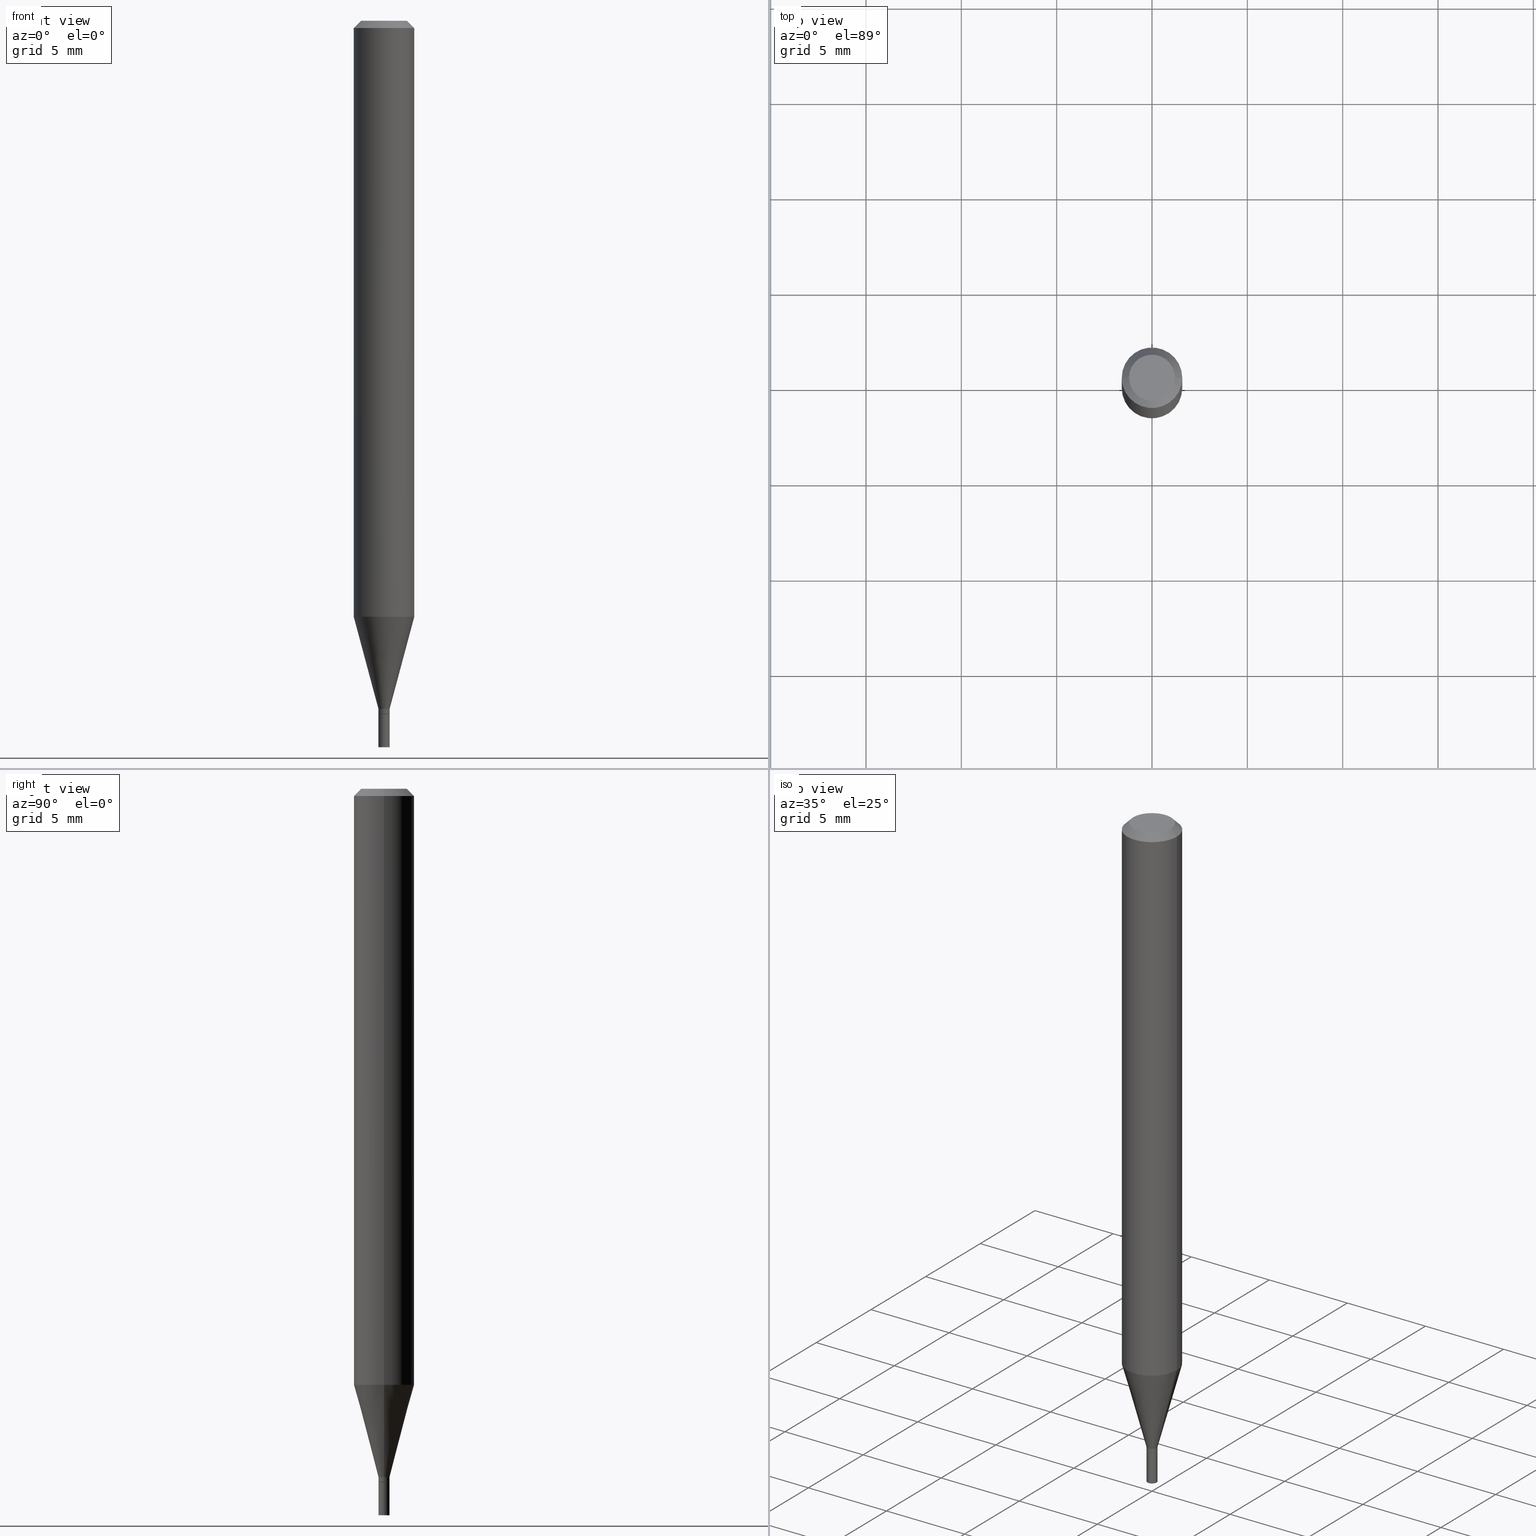
[diagram: canonical four-view strip — front | top / right | iso, engineering-drawing reading convention]
A machine part, canonical four-view strip (front | top / right | iso — engineering-drawing reading convention). The complete STEP part file that produces these views, byte-faithful:
ISO-10303-21;
HEADER;
FILE_DESCRIPTION (( 'STEP AP203' ),
    '1' );
FILE_NAME ('02330.STEP',
    '2024-03-18T20:08:19',
    ( '' ),
    ( '' ),
    'SwSTEP 2.0',
    'SolidWorks 2023',
    '' );
FILE_SCHEMA (( 'CONFIG_CONTROL_DESIGN' ));
ENDSEC;

DATA;
#1 = CALENDAR_DATE ( 2024, 18, 3 ) ;
#2 = CARTESIAN_POINT ( 'NONE',  ( 0.01100000000000000110, -5.073122385339090530E-15, -1.431000000000000050 ) ) ;
#3 = VECTOR ( 'NONE', #340, 39.37007874015748143 ) ;
#4 = DIRECTION ( 'NONE',  ( -2.445468806185136597E-29, 3.491481338843145583E-15, 1.000000000000000000 ) ) ;
#5 = APPROVAL_ROLE ( '' ) ;
#6 = DIRECTION ( 'NONE',  ( -2.445468806185136597E-29, 3.491481338843145583E-15, 1.000000000000000000 ) ) ;
#7 = LINE ( 'NONE', #217, #105 ) ;
#8 = LINE ( 'NONE', #152, #192 ) ;
#9 = AXIS2_PLACEMENT_3D ( 'NONE', #168, #179, #438 ) ;
#10 = AXIS2_PLACEMENT_3D ( 'NONE', #42, #409, #82 ) ;
#11 = PERSON_AND_ORGANIZATION_ROLE ( 'classification_officer' ) ;
#12 = DIRECTION ( 'NONE',  ( 0.7071067811865405783, -7.319954787623230802E-15, -0.7071067811865542341 ) ) ;
#13 = EDGE_CURVE ( 'NONE', #339, #277, #288, .T. ) ;
#14 = DIRECTION ( 'NONE',  ( 1.000000000000000000, -6.982962677686266711E-15, 0.000000000000000000 ) ) ;
#15 = EDGE_LOOP ( 'NONE', ( #124, #87, #307, #242 ) ) ;
#16 = ORIENTED_EDGE ( 'NONE', *, *, #362, .F. ) ;
#17 = CARTESIAN_POINT ( 'NONE',  ( 0.01149999999999999981, -5.076613866677933538E-15, -1.431000000000000050 ) ) ;
#18 =( NAMED_UNIT ( * ) PLANE_ANGLE_UNIT ( ) SI_UNIT ( $, .RADIAN. ) );
#19 = UNCERTAINTY_MEASURE_WITH_UNIT (LENGTH_MEASURE( 1.000000000000000082E-05 ), #374, 'distance_accuracy_value', 'NONE');
#20 = CIRCLE ( 'NONE', #10, 0.01149999999999992348 ) ;
#21 = EDGE_CURVE ( 'NONE', #85, #358, #251, .T. ) ;
#22 = AXIS2_PLACEMENT_3D ( 'NONE', #114, #143, #289 ) ;
#23 = EDGE_LOOP ( 'NONE', ( #268, #458 ) ) ;
#24 = ORIENTED_EDGE ( 'NONE', *, *, #181, .T. ) ;
#25 = ORIENTED_EDGE ( 'NONE', *, *, #419, .F. ) ;
#26 = DIRECTION ( 'NONE',  ( -2.445468806185136597E-29, 3.491481338843145583E-15, 1.000000000000000000 ) ) ;
#27 = AXIS2_PLACEMENT_3D ( 'NONE', #40, #436, #314 ) ;
#28 = AXIS2_PLACEMENT_3D ( 'NONE', #332, #154, #86 ) ;
#29 = ADVANCED_FACE ( 'NONE', ( #364 ), #412, .T. ) ;
#30 = CARTESIAN_POINT ( 'NONE',  ( -7.156224791579416592E-45, 1.021719240628687565E-30, 2.926320210456058586E-16 ) ) ;
#31 = DIRECTION ( 'NONE',  ( -2.445468806185136877E-29, 3.491481338843145188E-15, 1.000000000000000000 ) ) ;
#32 = ORIENTED_EDGE ( 'NONE', *, *, #429, .T. ) ;
#33 = DIRECTION ( 'NONE',  ( -2.438088387897960049E-29, 3.491481338843145188E-15, 1.000000000000000000 ) ) ;
#34 = APPROVAL_STATUS ( 'not_yet_approved' ) ;
#35 = VERTEX_POINT ( 'NONE', #104 ) ;
#36 = DATE_AND_TIME ( #220, #50 ) ;
#37 = DIRECTION ( 'NONE',  ( 2.445468806185136597E-29, -3.491481338843145583E-15, -1.000000000000000000 ) ) ;
#38 = LINE ( 'NONE', #262, #420 ) ;
#39 = CC_DESIGN_PERSON_AND_ORGANIZATION_ASSIGNMENT ( #324, #209, ( #297 ) ) ;
#40 = CARTESIAN_POINT ( 'NONE',  ( 0.000000000000000000, 0.000000000000000000, 0.000000000000000000 ) ) ;
#41 = AXIS2_PLACEMENT_3D ( 'NONE', #248, #441, #395 ) ;
#42 = CARTESIAN_POINT ( 'NONE',  ( 3.498243127247838561E-29, -4.994564055215120503E-15, -1.430500000000000327 ) ) ;
#43 = CYLINDRICAL_SURFACE ( 'NONE', #27, 0.06250000000000000000 ) ;
#44 = EDGE_CURVE ( 'NONE', #169, #85, #225, .T. ) ;
#45 = COORDINATED_UNIVERSAL_TIME_OFFSET ( 5, 0, .BEHIND. ) ;
#46 = PRODUCT_DEFINITION_SHAPE ( 'NONE', 'NONE',  #274 ) ;
#47 = DIRECTION ( 'NONE',  ( -2.445468806185136597E-29, 3.491481338843145583E-15, 1.000000000000000000 ) ) ;
#48 = ADVANCED_FACE ( 'NONE', ( #100 ), #350, .T. ) ;
#49 = VECTOR ( 'NONE', #403, 39.37007874015748143 ) ;
#50 = LOCAL_TIME ( 16, 8, 19.00000000000000000, #256 ) ;
#51 = CYLINDRICAL_SURFACE ( 'NONE', #28, 0.01149999999999992174 ) ;
#52 = FACE_OUTER_BOUND ( 'NONE', #208, .T. ) ;
#53 = DIRECTION ( 'NONE',  ( -2.445468806185136597E-29, 3.491481338843145583E-15, 1.000000000000000000 ) ) ;
#54 = ADVANCED_FACE ( 'NONE', ( #134 ), #304, .T. ) ;
#55 = ORIENTED_EDGE ( 'NONE', *, *, #92, .T. ) ;
#56 = CARTESIAN_POINT ( 'NONE',  ( 3.475011173589079817E-29, -4.961394982496111147E-15, -1.421000000000000263 ) ) ;
#57 = AXIS2_PLACEMENT_3D ( 'NONE', #247, #431, #463 ) ;
#58 = CIRCLE ( 'NONE', #312, 0.06250000000000000000 ) ;
#59 = EDGE_CURVE ( 'NONE', #232, #93, #186, .T. ) ;
#60 = CIRCLE ( 'NONE', #203, 0.04749999999999999362 ) ;
#61 = ORIENTED_EDGE ( 'NONE', *, *, #405, .F. ) ;
#62 = ORIENTED_EDGE ( 'NONE', *, *, #139, .F. ) ;
#63 = FACE_OUTER_BOUND ( 'NONE', #244, .T. ) ;
#64 = ORIENTED_EDGE ( 'NONE', *, *, #148, .F. ) ;
#65 = DIRECTION ( 'NONE',  ( -2.445468806185136597E-29, 3.491481338843145583E-15, 1.000000000000000000 ) ) ;
#66 = VERTEX_POINT ( 'NONE', #135 ) ;
#67 = VECTOR ( 'NONE', #243, 39.37007874015748143 ) ;
#68 = VECTOR ( 'NONE', #271, 39.37007874015748143 ) ;
#69 = CARTESIAN_POINT ( 'NONE',  ( 0.04749999999999999362, -4.035134999187572707E-16, 2.926320210456084224E-16 ) ) ;
#70 = ORIENTED_EDGE ( 'NONE', *, *, #276, .F. ) ;
#71 = PERSON_AND_ORGANIZATION ( #145, #250 ) ;
#72 = DIRECTION ( 'NONE',  ( 2.445468806185136597E-29, -3.491481338843145583E-15, -1.000000000000000000 ) ) ;
#73 = DIRECTION ( 'NONE',  ( -2.445468806185136877E-29, 3.491481338843145188E-15, 1.000000000000000000 ) ) ;
#74 = CARTESIAN_POINT ( 'NONE',  ( 0.000000000000000000, 0.000000000000000000, 0.000000000000000000 ) ) ;
#75 = CYLINDRICAL_SURFACE ( 'NONE', #9, 0.06250000000000000000 ) ;
#76 = FACE_OUTER_BOUND ( 'NONE', #126, .T. ) ;
#77 = AXIS2_PLACEMENT_3D ( 'NONE', #459, #26, #398 ) ;
#78 = CONICAL_SURFACE ( 'NONE', #377, 0.06250000000000000000, 0.7853981633974386201 ) ;
#79 = DIRECTION ( 'NONE',  ( -2.445468806185136597E-29, 3.491481338843145583E-15, 1.000000000000000000 ) ) ;
#80 = PRODUCT ( '02330', '02330', '', ( #442 ) ) ;
#81 = ADVANCED_FACE ( 'NONE', ( #212 ), #75, .T. ) ;
#82 = DIRECTION ( 'NONE',  ( 1.000000000000000000, -6.982962677686252511E-15, 0.000000000000000000 ) ) ;
#83 = CIRCLE ( 'NONE', #149, 0.01149999999999999981 ) ;
#84 = CONICAL_SURFACE ( 'NONE', #427, 0.06250000000000000000, 0.7853981633974386201 ) ;
#85 = VERTEX_POINT ( 'NONE', #255 ) ;
#86 = DIRECTION ( 'NONE',  ( 1.000000000000000000, -6.982962677686266711E-15, 4.876176775795935232E-29 ) ) ;
#87 = ORIENTED_EDGE ( 'NONE', *, *, #188, .T. ) ;
#88 = ORIENTED_EDGE ( 'NONE', *, *, #276, .T. ) ;
#89 = FACE_OUTER_BOUND ( 'NONE', #280, .T. ) ;
#90 = CIRCLE ( 'NONE', #249, 0.01149999999999999981 ) ;
#91 = CC_DESIGN_APPROVAL ( #294, ( #297 ) ) ;
#92 = EDGE_CURVE ( 'NONE', #131, #169, #7, .T. ) ;
#93 = VERTEX_POINT ( 'NONE', #286 ) ;
#94 = AXIS2_PLACEMENT_3D ( 'NONE', #97, #227, #383 ) ;
#95 = ORIENTED_EDGE ( 'NONE', *, *, #362, .T. ) ;
#96 = CIRCLE ( 'NONE', #193, 0.06250000000000000000 ) ;
#97 = CARTESIAN_POINT ( 'NONE',  ( 8.030407079342705414E-17, 0.01149999999999500380, -1.431000000000000050 ) ) ;
#98 = ORIENTED_EDGE ( 'NONE', *, *, #139, .T. ) ;
#99 = ORIENTED_EDGE ( 'NONE', *, *, #206, .T. ) ;
#100 = FACE_OUTER_BOUND ( 'NONE', #125, .T. ) ;
#101 = CARTESIAN_POINT ( 'NONE',  ( 0.000000000000000000, 0.000000000000000000, 0.000000000000000000 ) ) ;
#102 = PRODUCT_RELATED_PRODUCT_CATEGORY ( 'detail', '', ( #80 ) ) ;
#103 = ORIENTED_EDGE ( 'NONE', *, *, #311, .F. ) ;
#104 = CARTESIAN_POINT ( 'NONE',  ( -0.01149999999999999981, -5.035053487462219287E-15, -1.431000000000000050 ) ) ;
#105 = VECTOR ( 'NONE', #318, 39.37007874015748143 ) ;
#106 = CARTESIAN_POINT ( 'NONE',  ( 3.499465861650930802E-29, -4.996309795884541218E-15, -1.431000000000000050 ) ) ;
#107 =( NAMED_UNIT ( * ) SI_UNIT ( $, .STERADIAN. ) SOLID_ANGLE_UNIT ( ) );
#108 = PERSON_AND_ORGANIZATION ( #145, #250 ) ;
#109 = FACE_OUTER_BOUND ( 'NONE', #379, .T. ) ;
#110 = DATE_TIME_ROLE ( 'classification_date' ) ;
#111 = DIRECTION ( 'NONE',  ( 0.7071067811865642261, -2.468850131082431399E-15, 0.7071067811865309194 ) ) ;
#112 = APPROVAL_ROLE ( '' ) ;
#113 = CIRCLE ( 'NONE', #342, 0.01149999999999999981 ) ;
#114 = CARTESIAN_POINT ( 'NONE',  ( 3.475011173589079817E-29, -4.961394982496111147E-15, -1.421000000000000263 ) ) ;
#115 =( GEOMETRIC_REPRESENTATION_CONTEXT ( 3 ) GLOBAL_UNCERTAINTY_ASSIGNED_CONTEXT ( ( #19 ) ) GLOBAL_UNIT_ASSIGNED_CONTEXT ( ( #374, #18, #107 ) ) REPRESENTATION_CONTEXT ( 'NONE', 'WORKASPACE' ) );
#116 = EDGE_CURVE ( 'NONE', #302, #133, #113, .T. ) ;
#117 = COORDINATED_UNIVERSAL_TIME_OFFSET ( 5, 0, .BEHIND. ) ;
#118 = CARTESIAN_POINT ( 'NONE',  ( 0.06250000000000000000, -4.888073874380388472E-16, -0.01499999999999999944 ) ) ;
#119 = DIRECTION ( 'NONE',  ( 1.000000000000000000, -6.982962677686254878E-15, 0.000000000000000000 ) ) ;
#120 = ORIENTED_EDGE ( 'NONE', *, *, #440, .F. ) ;
#121 = DIRECTION ( 'NONE',  ( 1.000000000000000000, -6.982962677686267499E-15, 4.876176775795935793E-29 ) ) ;
#122 = CIRCLE ( 'NONE', #260, 0.01149999999999992001 ) ;
#123 = ADVANCED_FACE ( 'NONE', ( #109 ), #43, .T. ) ;
#124 = ORIENTED_EDGE ( 'NONE', *, *, #181, .F. ) ;
#125 = EDGE_LOOP ( 'NONE', ( #32, #376, #355, #61 ) ) ;
#126 = EDGE_LOOP ( 'NONE', ( #375, #166 ) ) ;
#127 = PLANE ( 'NONE',  #426 ) ;
#128 = EDGE_CURVE ( 'NONE', #417, #131, #130, .T. ) ;
#129 = CIRCLE ( 'NONE', #141, 0.01100000000000000110 ) ;
#130 = CIRCLE ( 'NONE', #22, 0.01149999999999992001 ) ;
#131 = VERTEX_POINT ( 'NONE', #296 ) ;
#132 = CC_DESIGN_APPROVAL ( #393, ( #354 ) ) ;
#133 = VERTEX_POINT ( 'NONE', #253 ) ;
#134 = FACE_OUTER_BOUND ( 'NONE', #15, .T. ) ;
#135 = CARTESIAN_POINT ( 'NONE',  ( -0.01149999999999992348, -4.912851640602709304E-15, -1.430500000000000327 ) ) ;
#136 = CC_DESIGN_PERSON_AND_ORGANIZATION_ASSIGNMENT ( #406, #183, ( #80 ) ) ;
#137 = CARTESIAN_POINT ( 'NONE',  ( 3.499465861650930802E-29, -4.996309795884541218E-15, -1.431000000000000050 ) ) ;
#138 = DIRECTION ( 'NONE',  ( -2.445468806185136597E-29, 3.491481338843145583E-15, 1.000000000000000000 ) ) ;
#139 = EDGE_CURVE ( 'NONE', #433, #35, #90, .T. ) ;
#140 = CALENDAR_DATE ( 2024, 18, 3 ) ;
#141 = AXIS2_PLACEMENT_3D ( 'NONE', #283, #408, #211 ) ;
#142 = VECTOR ( 'NONE', #372, 39.37007874015748854 ) ;
#143 = DIRECTION ( 'NONE',  ( -2.445468806185136597E-29, 3.491481338843145583E-15, 1.000000000000000000 ) ) ;
#144 = CARTESIAN_POINT ( 'NONE',  ( -0.06250000000000000000, -1.730519554808165837E-15, -0.01499999999999999944 ) ) ;
#145 = PERSON ( 'UNSPECIFIED', 'UNSPECIFIED', 'UNSPECIFIED', ('UNSPECIFIED'), ('UNSPECIFIED'), ('UNSPECIFIED') ) ;
#146 = CALENDAR_DATE ( 2024, 18, 3 ) ;
#147 = CARTESIAN_POINT ( 'NONE',  ( 3.668203209277704895E-29, -5.237222008264718177E-15, -1.500000000000000222 ) ) ;
#148 = EDGE_CURVE ( 'NONE', #339, #228, #404, .T. ) ;
#149 = AXIS2_PLACEMENT_3D ( 'NONE', #461, #79, #401 ) ;
#150 = CARTESIAN_POINT ( 'NONE',  ( 3.668203209277705088E-31, -5.237222008264718399E-17, -0.01499999999999999944 ) ) ;
#151 = AXIS2_PLACEMENT_3D ( 'NONE', #224, #47, #14 ) ;
#152 = CARTESIAN_POINT ( 'NONE',  ( 0.01149999999999992174, -8.030407079339151842E-17, 5.607603292165287521E-31 ) ) ;
#153 = CARTESIAN_POINT ( 'NONE',  ( 3.668203209277704895E-29, -5.237222008264718177E-15, -1.500000000000000222 ) ) ;
#154 = DIRECTION ( 'NONE',  ( -2.445468806185136597E-29, 3.491481338843145583E-15, 1.000000000000000000 ) ) ;
#155 = EDGE_LOOP ( 'NONE', ( #98, #382 ) ) ;
#156 = LINE ( 'NONE', #199, #68 ) ;
#157 = ORIENTED_EDGE ( 'NONE', *, *, #206, .F. ) ;
#158 = EDGE_CURVE ( 'NONE', #35, #433, #83, .T. ) ;
#159 = CARTESIAN_POINT ( 'NONE',  ( -0.01100000000000000110, -4.915500867776819716E-15, -1.431000000000000050 ) ) ;
#160 = VECTOR ( 'NONE', #12, 39.37007874015748854 ) ;
#161 = CC_DESIGN_PERSON_AND_ORGANIZATION_ASSIGNMENT ( #71, #11, ( #354 ) ) ;
#162 = ORIENTED_EDGE ( 'NONE', *, *, #384, .T. ) ;
#163 = CARTESIAN_POINT ( 'NONE',  ( 3.499465861650930802E-29, -4.996309795884541218E-15, -1.431000000000000050 ) ) ;
#164 = ORIENTED_EDGE ( 'NONE', *, *, #341, .F. ) ;
#165 = AXIS2_PLACEMENT_3D ( 'NONE', #270, #216, #450 ) ;
#166 = ORIENTED_EDGE ( 'NONE', *, *, #381, .F. ) ;
#167 = CC_DESIGN_DATE_AND_TIME_ASSIGNMENT ( #214, #110, ( #354 ) ) ;
#168 = CARTESIAN_POINT ( 'NONE',  ( 0.000000000000000000, 0.000000000000000000, 0.000000000000000000 ) ) ;
#169 = VERTEX_POINT ( 'NONE', #446 ) ;
#170 = DIRECTION ( 'NONE',  ( -2.445468806185136877E-29, 3.491481338843145188E-15, 1.000000000000000000 ) ) ;
#171 = DIRECTION ( 'NONE',  ( 1.000000000000000000, -6.982962677686265922E-15, 4.876176775795935793E-29 ) ) ;
#172 = EDGE_CURVE ( 'NONE', #169, #200, #38, .T. ) ;
#173 = APPROVAL_STATUS ( 'not_yet_approved' ) ;
#174 = DIRECTION ( 'NONE',  ( -2.445468806185136597E-29, 3.491481338843145583E-15, 1.000000000000000000 ) ) ;
#175 = DIRECTION ( 'NONE',  ( 0.000000000000000000, 0.000000000000000000, 1.000000000000000000 ) ) ;
#176 = COORDINATED_UNIVERSAL_TIME_OFFSET ( 5, 0, .BEHIND. ) ;
#177 = VECTOR ( 'NONE', #31, 39.37007874015748143 ) ;
#178 = CC_DESIGN_APPROVAL ( #449, ( #274 ) ) ;
#179 = DIRECTION ( 'NONE',  ( -2.445468806185136597E-29, 3.491481338843145583E-15, 1.000000000000000000 ) ) ;
#180 = APPLICATION_CONTEXT ( 'configuration controlled 3d designs of mechanical parts and assemblies' ) ;
#181 = EDGE_CURVE ( 'NONE', #277, #66, #465, .T. ) ;
#182 = CARTESIAN_POINT ( 'NONE',  ( -0.01100000000000000110, -4.918150094950930917E-15, -1.431000000000000050 ) ) ;
#183 = PERSON_AND_ORGANIZATION_ROLE ( 'design_owner' ) ;
#184 = PERSON_AND_ORGANIZATION_ROLE ( 'creator' ) ;
#185 = APPROVAL_DATE_TIME ( #36, #294 ) ;
#186 = CIRCLE ( 'NONE', #240, 0.04749999999999999362 ) ;
#187 = CARTESIAN_POINT ( 'NONE',  ( 0.06250000000000000000, -4.811533449433679005E-16, -0.01499999999999999944 ) ) ;
#188 = EDGE_CURVE ( 'NONE', #277, #339, #129, .T. ) ;
#189 = EDGE_LOOP ( 'NONE', ( #303, #157, #397, #279 ) ) ;
#190 = DIRECTION ( 'NONE',  ( 1.000000000000000000, -6.982962677686291165E-15, 0.000000000000000000 ) ) ;
#191 = CYLINDRICAL_SURFACE ( 'NONE', #447, 0.01149999999999999981 ) ;
#192 = VECTOR ( 'NONE', #264, 39.37007874015748143 ) ;
#193 = AXIS2_PLACEMENT_3D ( 'NONE', #334, #368, #295 ) ;
#194 = ADVANCED_FACE ( 'NONE', ( #361 ), #323, .T. ) ;
#195 = EDGE_LOOP ( 'NONE', ( #373, #457, #414, #245 ) ) ;
#196 = CARTESIAN_POINT ( 'NONE',  ( -0.01149999999999992174, 8.171241461241096533E-17, -5.656775353793103064E-31 ) ) ;
#197 = CIRCLE ( 'NONE', #151, 0.06250000000000000000 ) ;
#198 = ORIENTED_EDGE ( 'NONE', *, *, #429, .F. ) ;
#199 = CARTESIAN_POINT ( 'NONE',  ( 0.01149999999999992001, -5.041699053289501888E-15, -1.421000000000000263 ) ) ;
#200 = VERTEX_POINT ( 'NONE', #144 ) ;
#201 = ORIENTED_EDGE ( 'NONE', *, *, #44, .T. ) ;
#202 = CARTESIAN_POINT ( 'NONE',  ( 3.009553868105685827E-29, -4.296845309233809826E-15, -1.230665408813987893 ) ) ;
#203 = AXIS2_PLACEMENT_3D ( 'NONE', #30, #432, #291 ) ;
#204 = LOCAL_TIME ( 16, 8, 19.00000000000000000, #45 ) ;
#205 = DIRECTION ( 'NONE',  ( 1.000000000000000000, -6.982962677686244622E-15, 0.000000000000000000 ) ) ;
#206 = EDGE_CURVE ( 'NONE', #93, #232, #60, .T. ) ;
#207 = PLANE ( 'NONE',  #328 ) ;
#208 = EDGE_LOOP ( 'NONE', ( #315, #24, #198, #64 ) ) ;
#209 = PERSON_AND_ORGANIZATION_ROLE ( 'design_supplier' ) ;
#210 = MANIFOLD_SOLID_BREP ( 'Body-Move/Copy2[2]', #392 ) ;
#211 = DIRECTION ( 'NONE',  ( 1.000000000000000000, -6.982962677686244622E-15, 0.000000000000000000 ) ) ;
#212 = FACE_OUTER_BOUND ( 'NONE', #313, .T. ) ;
#213 = EDGE_CURVE ( 'NONE', #66, #228, #272, .T. ) ;
#214 = DATE_AND_TIME ( #1, #421 ) ;
#215 = CONICAL_SURFACE ( 'NONE', #413, 0.01100000000000000110, 0.7853981633974718157 ) ;
#216 = DIRECTION ( 'NONE',  ( 2.438088387897960049E-29, -3.491481338843145188E-15, -1.000000000000000000 ) ) ;
#217 = CARTESIAN_POINT ( 'NONE',  ( -0.01149999999999992001, -4.879682567883699947E-15, -1.421000000000000263 ) ) ;
#218 = APPLICATION_PROTOCOL_DEFINITION ( 'international standard', 'config_control_design', 1994, #180 ) ;
#219 = MANIFOLD_SOLID_BREP ( 'Body-Move/Copy2[1]', #258 ) ;
#220 = CALENDAR_DATE ( 2024, 18, 3 ) ;
#221 = CARTESIAN_POINT ( 'NONE',  ( 3.475011173589079817E-29, -4.961394982496111147E-15, -1.421000000000000263 ) ) ;
#222 = PERSON_AND_ORGANIZATION ( #145, #250 ) ;
#223 = APPLICATION_CONTEXT ( 'configuration controlled 3d designs of mechanical parts and assemblies' ) ;
#224 = CARTESIAN_POINT ( 'NONE',  ( 3.668203209277705088E-31, -5.237222008264718399E-17, -0.01499999999999999944 ) ) ;
#225 = CIRCLE ( 'NONE', #259, 0.06250000000000000000 ) ;
#226 = LINE ( 'NONE', #187, #160 ) ;
#227 = DIRECTION ( 'NONE',  ( 2.438088387897960049E-29, -3.491481338843145188E-15, -1.000000000000000000 ) ) ;
#228 = VERTEX_POINT ( 'NONE', #257 ) ;
#229 = CARTESIAN_POINT ( 'NONE',  ( 3.499465861650930802E-29, -4.996309795884541218E-15, -1.431000000000000050 ) ) ;
#230 = FACE_OUTER_BOUND ( 'NONE', #344, .T. ) ;
#231 = CARTESIAN_POINT ( 'NONE',  ( 0.01149999999999999981, -5.317526079058111285E-15, -1.500000000000000222 ) ) ;
#232 = VERTEX_POINT ( 'NONE', #69 ) ;
#233 = CARTESIAN_POINT ( 'NONE',  ( 0.000000000000000000, 0.000000000000000000, 0.000000000000000000 ) ) ;
#234 = DESIGN_CONTEXT ( 'detailed design', #223, 'design' ) ;
#235 = LOCAL_TIME ( 16, 8, 19.00000000000000000, #176 ) ;
#236 = ORIENTED_EDGE ( 'NONE', *, *, #172, .T. ) ;
#237 = ADVANCED_FACE ( 'NONE', ( #76 ), #207, .F. ) ;
#238 = DIRECTION ( 'NONE',  ( -2.445468806185136597E-29, 3.491481338843145583E-15, 1.000000000000000000 ) ) ;
#239 = FACE_OUTER_BOUND ( 'NONE', #155, .T. ) ;
#240 = AXIS2_PLACEMENT_3D ( 'NONE', #281, #366, #363 ) ;
#241 = CC_DESIGN_SECURITY_CLASSIFICATION ( #354, ( #297 ) ) ;
#242 = ORIENTED_EDGE ( 'NONE', *, *, #213, .F. ) ;
#243 = DIRECTION ( 'NONE',  ( -2.445468806185136877E-29, 3.491481338843145188E-15, 1.000000000000000000 ) ) ;
#244 = EDGE_LOOP ( 'NONE', ( #103, #454, #284, #16 ) ) ;
#245 = ORIENTED_EDGE ( 'NONE', *, *, #371, .F. ) ;
#246 = ADVANCED_FACE ( 'NONE', ( #239 ), #422, .F. ) ;
#247 = CARTESIAN_POINT ( 'NONE',  ( 3.499465861650930802E-29, -4.996309795884541218E-15, -1.431000000000000050 ) ) ;
#248 = CARTESIAN_POINT ( 'NONE',  ( 3.498243127247838561E-29, -4.994564055215120503E-15, -1.430500000000000327 ) ) ;
#249 = AXIS2_PLACEMENT_3D ( 'NONE', #106, #174, #326 ) ;
#250 = ORGANIZATION ( 'UNSPECIFIED', 'UNSPECIFIED', '' ) ;
#251 = LINE ( 'NONE', #345, #177 ) ;
#252 = DATE_AND_TIME ( #140, #235 ) ;
#253 = CARTESIAN_POINT ( 'NONE',  ( -0.01149999999999999981, -5.035053487462219287E-15, -1.500000000000000222 ) ) ;
#254 = SECURITY_CLASSIFICATION_LEVEL ( 'unclassified' ) ;
#255 = CARTESIAN_POINT ( 'NONE',  ( 0.06249999999999997918, -4.733280476589200707E-15, -1.230665408813987893 ) ) ;
#256 = COORDINATED_UNIVERSAL_TIME_OFFSET ( 5, 0, .BEHIND. ) ;
#257 = CARTESIAN_POINT ( 'NONE',  ( 0.01149999999999992348, -5.074868126008511245E-15, -1.430500000000000327 ) ) ;
#258 = CLOSED_SHELL ( 'NONE', ( #194, #237, #443, #246 ) ) ;
#259 = AXIS2_PLACEMENT_3D ( 'NONE', #202, #65, #316 ) ;
#260 = AXIS2_PLACEMENT_3D ( 'NONE', #221, #6, #119 ) ;
#261 = CARTESIAN_POINT ( 'NONE',  ( -0.06250000000000000000, 3.840629472727444916E-16, -0.01499999999999999944 ) ) ;
#262 = CARTESIAN_POINT ( 'NONE',  ( -0.06250000000000000000, 4.440892098500626162E-16, -3.074334431409316114E-30 ) ) ;
#263 = CC_DESIGN_PERSON_AND_ORGANIZATION_ASSIGNMENT ( #108, #184, ( #297 ) ) ;
#264 = DIRECTION ( 'NONE',  ( -2.445468806185136877E-29, 3.491481338843145188E-15, 1.000000000000000000 ) ) ;
#265 = ADVANCED_FACE ( 'NONE', ( #267 ), #127, .F. ) ;
#266 = PLANE ( 'NONE',  #165 ) ;
#267 = FACE_OUTER_BOUND ( 'NONE', #23, .T. ) ;
#268 = ORIENTED_EDGE ( 'NONE', *, *, #13, .F. ) ;
#269 = CIRCLE ( 'NONE', #273, 0.01149999999999999981 ) ;
#270 = CARTESIAN_POINT ( 'NONE',  ( 3.316907271900976096E-16, 0.04749999999999999362, -1.952935307224647024E-17 ) ) ;
#271 = DIRECTION ( 'NONE',  ( 0.2588190451025216277, 1.565188264969619995E-15, 0.9659258262890679791 ) ) ;
#272 = CIRCLE ( 'NONE', #41, 0.01149999999999992348 ) ;
#273 = AXIS2_PLACEMENT_3D ( 'NONE', #153, #327, #190 ) ;
#274 = PRODUCT_DEFINITION ( 'UNKNOWN', '', #297, #234 ) ;
#275 = ORIENTED_EDGE ( 'NONE', *, *, #116, .T. ) ;
#276 = EDGE_CURVE ( 'NONE', #133, #35, #425, .T. ) ;
#277 = VERTEX_POINT ( 'NONE', #159 ) ;
#278 = AXIS2_PLACEMENT_3D ( 'NONE', #74, #175, #292 ) ;
#279 = ORIENTED_EDGE ( 'NONE', *, *, #419, .T. ) ;
#280 = EDGE_LOOP ( 'NONE', ( #70, #455, #462, #423 ) ) ;
#281 = CARTESIAN_POINT ( 'NONE',  ( -7.156224791579416592E-45, 1.021719240628687565E-30, 2.926320210456058586E-16 ) ) ;
#282 = CARTESIAN_POINT ( 'NONE',  ( 0.01149999999999999981, -8.030407079339207309E-17, 5.607603292165326057E-31 ) ) ;
#283 = CARTESIAN_POINT ( 'NONE',  ( 3.499465861650930802E-29, -4.996309795884541218E-15, -1.431000000000000050 ) ) ;
#284 = ORIENTED_EDGE ( 'NONE', *, *, #405, .T. ) ;
#285 = APPLICATION_PROTOCOL_DEFINITION ( 'international standard', 'config_control_design', 1994, #223 ) ;
#286 = CARTESIAN_POINT ( 'NONE',  ( -0.04749999999999999362, 3.578768372314215929E-16, 2.926320210456034427E-16 ) ) ;
#287 = CC_DESIGN_PERSON_AND_ORGANIZATION_ASSIGNMENT ( #290, #322, ( #274 ) ) ;
#288 = CIRCLE ( 'NONE', #385, 0.01100000000000000110 ) ;
#289 = DIRECTION ( 'NONE',  ( 1.000000000000000000, -6.982962677686254878E-15, 0.000000000000000000 ) ) ;
#290 = PERSON_AND_ORGANIZATION ( #145, #250 ) ;
#291 = DIRECTION ( 'NONE',  ( 1.000000000000000000, -6.982962677686267499E-15, 4.852736867747366768E-29 ) ) ;
#292 = DIRECTION ( 'NONE',  ( 1.000000000000000000, 0.000000000000000000, 0.000000000000000000 ) ) ;
#293 = DATE_AND_TIME ( #146, #204 ) ;
#294 = APPROVAL ( #448, 'UNSPECIFIED' ) ;
#295 = DIRECTION ( 'NONE',  ( 1.000000000000000000, -6.982962677686262766E-15, 0.000000000000000000 ) ) ;
#296 = CARTESIAN_POINT ( 'NONE',  ( -0.01149999999999992001, -4.366219333633723973E-15, -1.421000000000000263 ) ) ;
#297 = PRODUCT_DEFINITION_FORMATION_WITH_SPECIFIED_SOURCE ( 'ANY', '', #80, .NOT_KNOWN. ) ;
#298 = ADVANCED_FACE ( 'NONE', ( #63 ), #51, .T. ) ;
#299 = DIRECTION ( 'NONE',  ( -2.445468806185136597E-29, 3.491481338843145583E-15, 1.000000000000000000 ) ) ;
#300 = DIRECTION ( 'NONE',  ( 1.000000000000000000, -6.982962677686266711E-15, 0.000000000000000000 ) ) ;
#301 = CC_DESIGN_DATE_AND_TIME_ASSIGNMENT ( #252, #399, ( #274 ) ) ;
#302 = VERTEX_POINT ( 'NONE', #231 ) ;
#303 = ORIENTED_EDGE ( 'NONE', *, *, #367, .F. ) ;
#304 = CONICAL_SURFACE ( 'NONE', #57, 0.01100000000000000110, 0.7853981633974718157 ) ;
#305 = ORIENTED_EDGE ( 'NONE', *, *, #172, .F. ) ;
#306 =( LENGTH_UNIT ( ) NAMED_UNIT ( * ) SI_UNIT ( $, .METRE. ) );
#307 = ORIENTED_EDGE ( 'NONE', *, *, #148, .T. ) ;
#308 = ORIENTED_EDGE ( 'NONE', *, *, #21, .F. ) ;
#309 = DIRECTION ( 'NONE',  ( -2.438088387897960049E-29, 3.491481338843145188E-15, 1.000000000000000000 ) ) ;
#310 = EDGE_LOOP ( 'NONE', ( #349, #95, #394, #333 ) ) ;
#311 = EDGE_CURVE ( 'NONE', #66, #131, #380, .T. ) ;
#312 = AXIS2_PLACEMENT_3D ( 'NONE', #150, #411, #300 ) ;
#313 = EDGE_LOOP ( 'NONE', ( #162, #236, #389, #308 ) ) ;
#314 = DIRECTION ( 'NONE',  ( 1.000000000000000000, -6.982962677686266711E-15, 4.876176775795935793E-29 ) ) ;
#315 = ORIENTED_EDGE ( 'NONE', *, *, #13, .T. ) ;
#316 = DIRECTION ( 'NONE',  ( 1.000000000000000000, -6.982962677686262766E-15, 0.000000000000000000 ) ) ;
#317 = LINE ( 'NONE', #282, #343 ) ;
#318 = DIRECTION ( 'NONE',  ( -0.2588190451025216277, 5.211531920934551831E-15, 0.9659258262890679791 ) ) ;
#319 = APPROVAL_DATE_TIME ( #293, #393 ) ;
#320 = DIRECTION ( 'NONE',  ( 1.000000000000000000, -6.982962677686291165E-15, 0.000000000000000000 ) ) ;
#321 = CONICAL_SURFACE ( 'NONE', #329, 0.01149999999999992001, 0.2617993877991502960 ) ;
#322 = PERSON_AND_ORGANIZATION_ROLE ( 'creator' ) ;
#323 = CYLINDRICAL_SURFACE ( 'NONE', #336, 0.01149999999999999981 ) ;
#324 = PERSON_AND_ORGANIZATION ( #145, #250 ) ;
#325 = DIRECTION ( 'NONE',  ( 1.000000000000000000, -6.982962677686244622E-15, 0.000000000000000000 ) ) ;
#326 = DIRECTION ( 'NONE',  ( 1.000000000000000000, -6.982962677686291165E-15, 0.000000000000000000 ) ) ;
#327 = DIRECTION ( 'NONE',  ( -2.445468806185136597E-29, 3.491481338843145583E-15, 1.000000000000000000 ) ) ;
#328 = AXIS2_PLACEMENT_3D ( 'NONE', #357, #33, #171 ) ;
#329 = AXIS2_PLACEMENT_3D ( 'NONE', #56, #53, #337 ) ;
#330 = FACE_OUTER_BOUND ( 'NONE', #428, .T. ) ;
#331 = ADVANCED_FACE ( 'NONE', ( #453 ), #84, .T. ) ;
#332 = CARTESIAN_POINT ( 'NONE',  ( 0.000000000000000000, 0.000000000000000000, 0.000000000000000000 ) ) ;
#333 = ORIENTED_EDGE ( 'NONE', *, *, #44, .F. ) ;
#334 = CARTESIAN_POINT ( 'NONE',  ( 3.009553868105685827E-29, -4.296845309233809826E-15, -1.230665408813987893 ) ) ;
#335 = CARTESIAN_POINT ( 'NONE',  ( 3.475011173589079817E-29, -4.961394982496111147E-15, -1.421000000000000263 ) ) ;
#336 = AXIS2_PLACEMENT_3D ( 'NONE', #101, #4, #352 ) ;
#337 = DIRECTION ( 'NONE',  ( 1.000000000000000000, -6.982962677686254878E-15, 0.000000000000000000 ) ) ;
#338 = APPROVAL_PERSON_ORGANIZATION ( #360, #393, #5 ) ;
#339 = VERTEX_POINT ( 'NONE', #460 ) ;
#340 = DIRECTION ( 'NONE',  ( -2.445468806185136877E-29, 3.491481338843145188E-15, 1.000000000000000000 ) ) ;
#341 = EDGE_CURVE ( 'NONE', #302, #433, #317, .T. ) ;
#342 = AXIS2_PLACEMENT_3D ( 'NONE', #147, #138, #320 ) ;
#343 = VECTOR ( 'NONE', #170, 39.37007874015748143 ) ;
#344 = EDGE_LOOP ( 'NONE', ( #387, #55, #424, #120 ) ) ;
#345 = CARTESIAN_POINT ( 'NONE',  ( 0.06250000000000000000, -4.364351673553916694E-16, 3.047610484872459871E-30 ) ) ;
#346 = ORIENTED_EDGE ( 'NONE', *, *, #59, .T. ) ;
#347 = ADVANCED_FACE ( 'NONE', ( #464 ), #78, .T. ) ;
#348 = DIRECTION ( 'NONE',  ( -1.000000000000000000, 6.982962677686266711E-15, 0.000000000000000000 ) ) ;
#349 = ORIENTED_EDGE ( 'NONE', *, *, #92, .F. ) ;
#350 = CYLINDRICAL_SURFACE ( 'NONE', #77, 0.01149999999999992174 ) ;
#351 = DIRECTION ( 'NONE',  ( -1.000000000000000000, 6.982962677686266711E-15, 0.000000000000000000 ) ) ;
#352 = DIRECTION ( 'NONE',  ( 1.000000000000000000, -6.982962677686267499E-15, 4.876176775795935793E-29 ) ) ;
#353 = VECTOR ( 'NONE', #111, 39.37007874015748143 ) ;
#354 = SECURITY_CLASSIFICATION ( '', '', #254 ) ;
#355 = ORIENTED_EDGE ( 'NONE', *, *, #128, .F. ) ;
#356 = ADVANCED_FACE ( 'NONE', ( #52 ), #215, .T. ) ;
#357 = CARTESIAN_POINT ( 'NONE',  ( 3.576687321579069994E-29, -5.368277968210015545E-15, -1.500000000000000222 ) ) ;
#358 = VERTEX_POINT ( 'NONE', #118 ) ;
#359 = DIRECTION ( 'NONE',  ( 1.000000000000000000, -6.982962677686254878E-15, 0.000000000000000000 ) ) ;
#360 = PERSON_AND_ORGANIZATION ( #145, #250 ) ;
#361 = FACE_OUTER_BOUND ( 'NONE', #430, .T. ) ;
#362 = EDGE_CURVE ( 'NONE', #131, #417, #122, .T. ) ;
#363 = DIRECTION ( 'NONE',  ( 1.000000000000000000, -6.982962677686267499E-15, 4.852736867747366768E-29 ) ) ;
#364 = FACE_OUTER_BOUND ( 'NONE', #310, .T. ) ;
#365 = LOCAL_TIME ( 16, 8, 19.00000000000000000, #437 ) ;
#366 = DIRECTION ( 'NONE',  ( -2.445468806185136597E-29, 3.491481338843145583E-15, 1.000000000000000000 ) ) ;
#367 = EDGE_CURVE ( 'NONE', #232, #358, #226, .T. ) ;
#368 = DIRECTION ( 'NONE',  ( -2.445468806185136597E-29, 3.491481338843145583E-15, 1.000000000000000000 ) ) ;
#369 = LINE ( 'NONE', #261, #142 ) ;
#370 = AXIS2_PLACEMENT_3D ( 'NONE', #335, #390, #359 ) ;
#371 = EDGE_CURVE ( 'NONE', #93, #200, #369, .T. ) ;
#372 = DIRECTION ( 'NONE',  ( -0.7071067811865405783, 2.468850131082184880E-15, -0.7071067811865542341 ) ) ;
#373 = ORIENTED_EDGE ( 'NONE', *, *, #59, .F. ) ;
#374 =( CONVERSION_BASED_UNIT ( 'INCH', #416 ) LENGTH_UNIT ( ) NAMED_UNIT ( #444 ) );
#375 = ORIENTED_EDGE ( 'NONE', *, *, #116, .F. ) ;
#376 = ORIENTED_EDGE ( 'NONE', *, *, #311, .T. ) ;
#377 = AXIS2_PLACEMENT_3D ( 'NONE', #400, #72, #348 ) ;
#378 = ADVANCED_BREP_SHAPE_REPRESENTATION ( '02330', ( #219, #210, #278 ), #115 ) ;
#379 = EDGE_LOOP ( 'NONE', ( #305, #201, #415, #25 ) ) ;
#380 = LINE ( 'NONE', #196, #3 ) ;
#381 = EDGE_CURVE ( 'NONE', #133, #302, #269, .T. ) ;
#382 = ORIENTED_EDGE ( 'NONE', *, *, #158, .T. ) ;
#383 = DIRECTION ( 'NONE',  ( -1.000000000000000000, 6.982962677686265922E-15, -4.876176775795935793E-29 ) ) ;
#384 = EDGE_CURVE ( 'NONE', #85, #169, #96, .T. ) ;
#385 = AXIS2_PLACEMENT_3D ( 'NONE', #137, #238, #205 ) ;
#386 = APPROVAL_PERSON_ORGANIZATION ( #396, #449, #466 ) ;
#387 = ORIENTED_EDGE ( 'NONE', *, *, #128, .T. ) ;
#388 = DIRECTION ( 'NONE',  ( 1.000000000000000000, -6.982962677686265922E-15, 4.876176775795935793E-29 ) ) ;
#389 = ORIENTED_EDGE ( 'NONE', *, *, #434, .F. ) ;
#390 = DIRECTION ( 'NONE',  ( -2.445468806185136597E-29, 3.491481338843145583E-15, 1.000000000000000000 ) ) ;
#391 = CARTESIAN_POINT ( 'NONE',  ( 3.668203209277705088E-31, -5.237222008264718399E-17, -0.01499999999999999944 ) ) ;
#392 = CLOSED_SHELL ( 'NONE', ( #48, #356, #347, #81, #451, #29, #123, #331, #410, #265, #54, #298 ) ) ;
#393 = APPROVAL ( #173, 'UNSPECIFIED' ) ;
#394 = ORIENTED_EDGE ( 'NONE', *, *, #440, .T. ) ;
#395 = DIRECTION ( 'NONE',  ( 1.000000000000000000, -6.982962677686252511E-15, 0.000000000000000000 ) ) ;
#396 = PERSON_AND_ORGANIZATION ( #145, #250 ) ;
#397 = ORIENTED_EDGE ( 'NONE', *, *, #371, .T. ) ;
#398 = DIRECTION ( 'NONE',  ( 1.000000000000000000, -6.982962677686266711E-15, 4.876176775795935232E-29 ) ) ;
#399 = DATE_TIME_ROLE ( 'creation_date' ) ;
#400 = CARTESIAN_POINT ( 'NONE',  ( 3.668203209277705088E-31, -5.237222008264718399E-17, -0.01499999999999999944 ) ) ;
#401 = DIRECTION ( 'NONE',  ( 1.000000000000000000, -6.982962677686291165E-15, 0.000000000000000000 ) ) ;
#402 = SHAPE_DEFINITION_REPRESENTATION ( #46, #378 ) ;
#403 = DIRECTION ( 'NONE',  ( -0.7071067811865642261, 7.493145998870414114E-15, 0.7071067811865309194 ) ) ;
#404 = LINE ( 'NONE', #2, #353 ) ;
#405 = EDGE_CURVE ( 'NONE', #228, #417, #8, .T. ) ;
#406 = PERSON_AND_ORGANIZATION ( #145, #250 ) ;
#407 = APPROVAL_DATE_TIME ( #435, #449 ) ;
#408 = DIRECTION ( 'NONE',  ( -2.445468806185136597E-29, 3.491481338843145583E-15, 1.000000000000000000 ) ) ;
#409 = DIRECTION ( 'NONE',  ( -2.445468806185136597E-29, 3.491481338843145583E-15, 1.000000000000000000 ) ) ;
#410 = ADVANCED_FACE ( 'NONE', ( #330 ), #266, .F. ) ;
#411 = DIRECTION ( 'NONE',  ( -2.445468806185136597E-29, 3.491481338843145583E-15, 1.000000000000000000 ) ) ;
#412 = CONICAL_SURFACE ( 'NONE', #370, 0.01149999999999992001, 0.2617993877991502960 ) ;
#413 = AXIS2_PLACEMENT_3D ( 'NONE', #229, #299, #325 ) ;
#414 = ORIENTED_EDGE ( 'NONE', *, *, #434, .T. ) ;
#415 = ORIENTED_EDGE ( 'NONE', *, *, #21, .T. ) ;
#416 = LENGTH_MEASURE_WITH_UNIT ( LENGTH_MEASURE( 0.02539999999999999897 ), #306 );
#417 = VERTEX_POINT ( 'NONE', #445 ) ;
#418 = DIRECTION ( 'NONE',  ( -2.445468806185136597E-29, 3.491481338843145583E-15, 1.000000000000000000 ) ) ;
#419 = EDGE_CURVE ( 'NONE', #200, #358, #58, .T. ) ;
#420 = VECTOR ( 'NONE', #73, 39.37007874015748143 ) ;
#421 = LOCAL_TIME ( 16, 8, 19.00000000000000000, #117 ) ;
#422 = PLANE ( 'NONE',  #94 ) ;
#423 = ORIENTED_EDGE ( 'NONE', *, *, #158, .F. ) ;
#424 = ORIENTED_EDGE ( 'NONE', *, *, #384, .F. ) ;
#425 = LINE ( 'NONE', #456, #67 ) ;
#426 = AXIS2_PLACEMENT_3D ( 'NONE', #163, #309, #388 ) ;
#427 = AXIS2_PLACEMENT_3D ( 'NONE', #391, #37, #351 ) ;
#428 = EDGE_LOOP ( 'NONE', ( #99, #346 ) ) ;
#429 = EDGE_CURVE ( 'NONE', #228, #66, #20, .T. ) ;
#430 = EDGE_LOOP ( 'NONE', ( #275, #88, #62, #164 ) ) ;
#431 = DIRECTION ( 'NONE',  ( -2.445468806185136597E-29, 3.491481338843145583E-15, 1.000000000000000000 ) ) ;
#432 = DIRECTION ( 'NONE',  ( -2.445468806185136597E-29, 3.491481338843145583E-15, 1.000000000000000000 ) ) ;
#433 = VERTEX_POINT ( 'NONE', #17 ) ;
#434 = EDGE_CURVE ( 'NONE', #358, #200, #197, .T. ) ;
#435 = DATE_AND_TIME ( #439, #365 ) ;
#436 = DIRECTION ( 'NONE',  ( -2.445468806185136597E-29, 3.491481338843145583E-15, 1.000000000000000000 ) ) ;
#437 = COORDINATED_UNIVERSAL_TIME_OFFSET ( 5, 0, .BEHIND. ) ;
#438 = DIRECTION ( 'NONE',  ( 1.000000000000000000, -6.982962677686266711E-15, 4.876176775795935793E-29 ) ) ;
#439 = CALENDAR_DATE ( 2024, 18, 3 ) ;
#440 = EDGE_CURVE ( 'NONE', #417, #85, #156, .T. ) ;
#441 = DIRECTION ( 'NONE',  ( -2.445468806185136597E-29, 3.491481338843145583E-15, 1.000000000000000000 ) ) ;
#442 = MECHANICAL_CONTEXT ( 'NONE', #180, 'mechanical' ) ;
#443 = ADVANCED_FACE ( 'NONE', ( #89 ), #191, .T. ) ;
#444 = DIMENSIONAL_EXPONENTS ( 1.000000000000000000, 0.000000000000000000, 0.000000000000000000, 0.000000000000000000, 0.000000000000000000, 0.000000000000000000, 0.000000000000000000 ) ;
#445 = CARTESIAN_POINT ( 'NONE',  ( 0.01149999999999992001, -5.041699053289501888E-15, -1.421000000000000263 ) ) ;
#446 = CARTESIAN_POINT ( 'NONE',  ( -0.06249999999999997918, -3.852756099383747210E-15, -1.230665408813987893 ) ) ;
#447 = AXIS2_PLACEMENT_3D ( 'NONE', #233, #418, #121 ) ;
#448 = APPROVAL_STATUS ( 'not_yet_approved' ) ;
#449 = APPROVAL ( #34, 'UNSPECIFIED' ) ;
#450 = DIRECTION ( 'NONE',  ( -1.000000000000000000, 6.982962677686265922E-15, -4.876176775795935793E-29 ) ) ;
#451 = ADVANCED_FACE ( 'NONE', ( #230 ), #321, .T. ) ;
#452 = APPROVAL_PERSON_ORGANIZATION ( #222, #294, #112 ) ;
#453 = FACE_OUTER_BOUND ( 'NONE', #189, .T. ) ;
#454 = ORIENTED_EDGE ( 'NONE', *, *, #213, .T. ) ;
#455 = ORIENTED_EDGE ( 'NONE', *, *, #381, .T. ) ;
#456 = CARTESIAN_POINT ( 'NONE',  ( -0.01149999999999999981, 8.171241461241151999E-17, -5.656775353793142476E-31 ) ) ;
#457 = ORIENTED_EDGE ( 'NONE', *, *, #367, .T. ) ;
#458 = ORIENTED_EDGE ( 'NONE', *, *, #188, .F. ) ;
#459 = CARTESIAN_POINT ( 'NONE',  ( 0.000000000000000000, 0.000000000000000000, 0.000000000000000000 ) ) ;
#460 = CARTESIAN_POINT ( 'NONE',  ( 0.01100000000000000110, -5.073122385339090530E-15, -1.431000000000000050 ) ) ;
#461 = CARTESIAN_POINT ( 'NONE',  ( 3.499465861650930802E-29, -4.996309795884541218E-15, -1.431000000000000050 ) ) ;
#462 = ORIENTED_EDGE ( 'NONE', *, *, #341, .T. ) ;
#463 = DIRECTION ( 'NONE',  ( 1.000000000000000000, -6.982962677686244622E-15, 0.000000000000000000 ) ) ;
#464 = FACE_OUTER_BOUND ( 'NONE', #195, .T. ) ;
#465 = LINE ( 'NONE', #182, #49 ) ;
#466 = APPROVAL_ROLE ( '' ) ;
ENDSEC;
END-ISO-10303-21;
